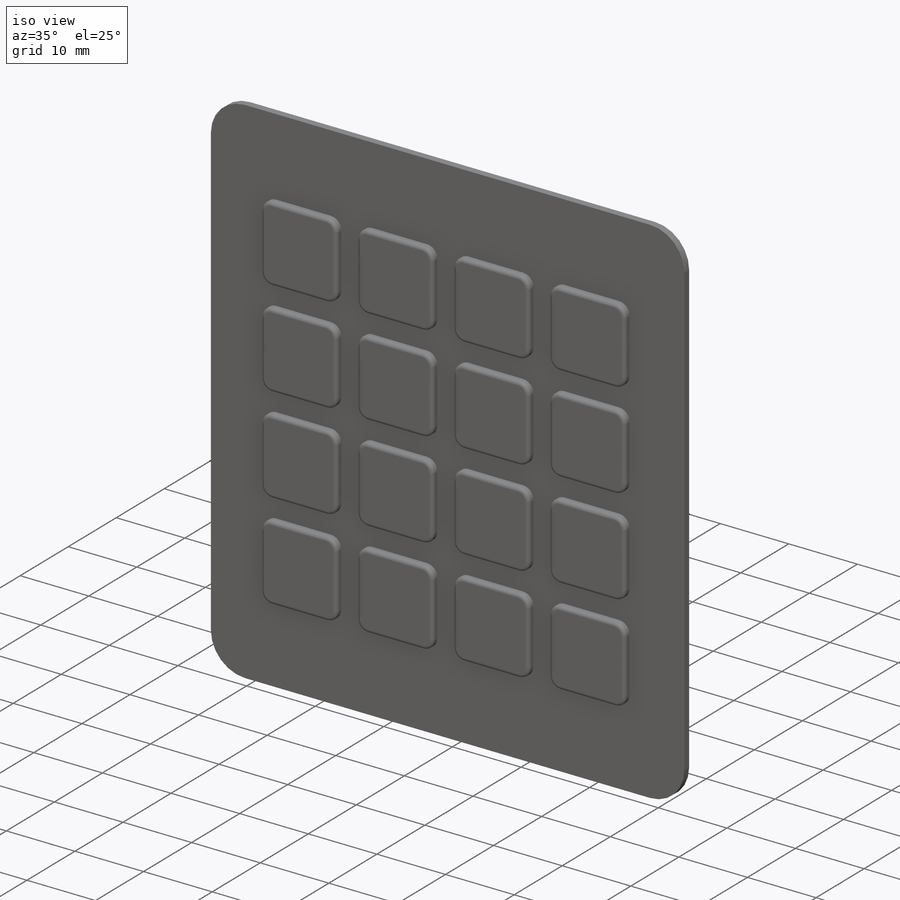
[diagram: iso view]
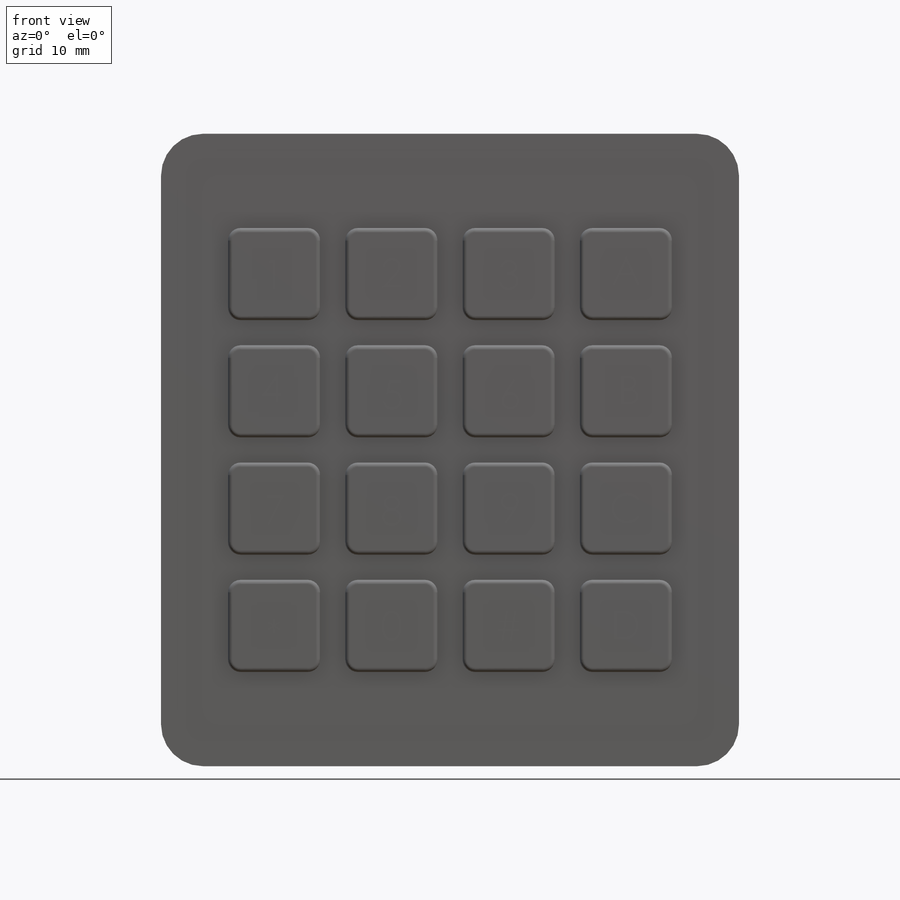
[diagram: front view]
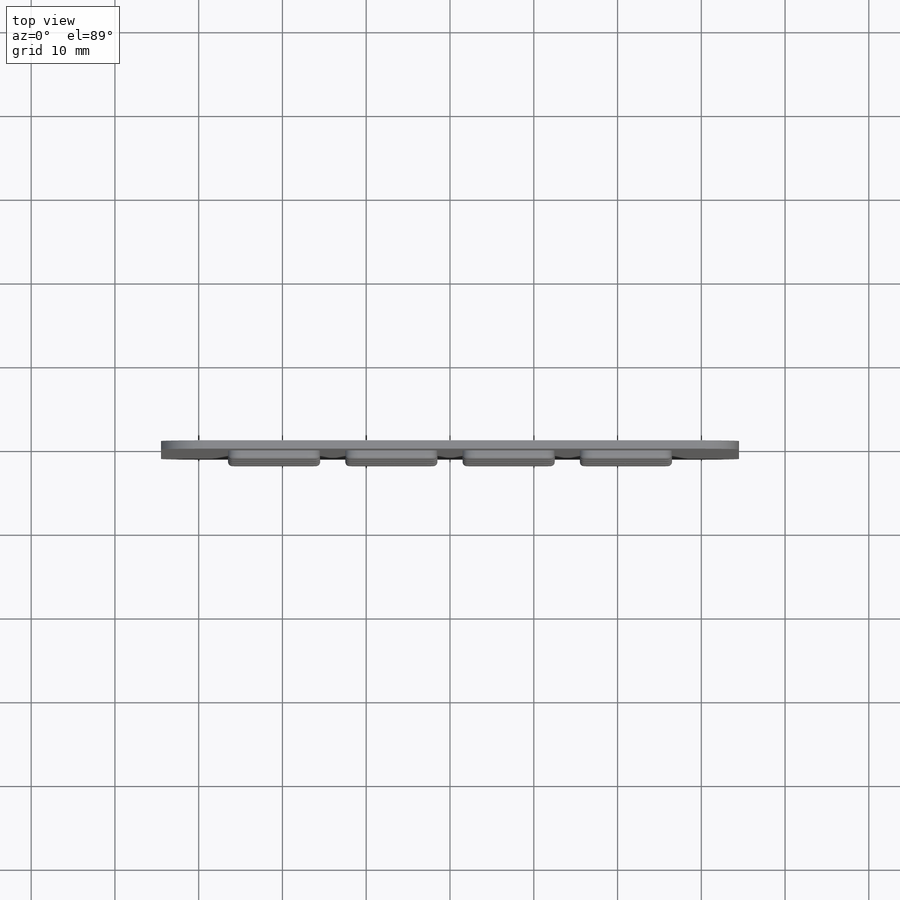
[diagram: top view]
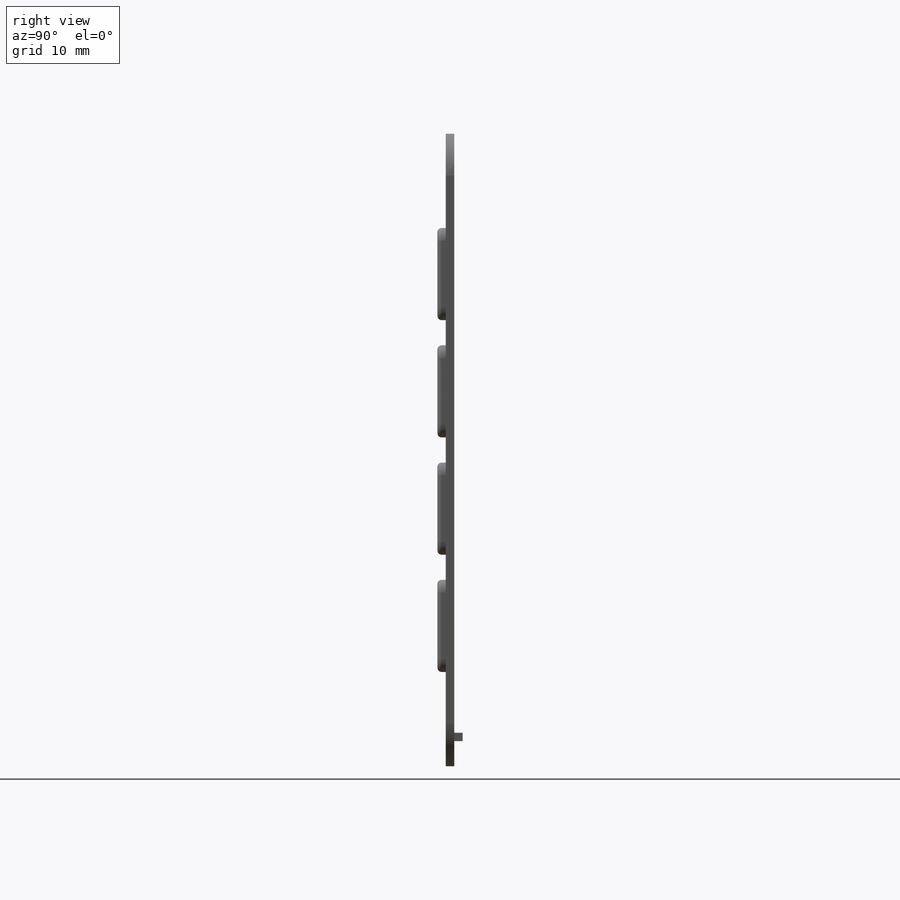
[diagram: right view]
SOLIDWORKS PART (.sldprt)
format: sldprt  version: not decoded by parser v0  size: 1,724,416 bytes
history: native  units: mm
features: sketch x5, extrude x5, plane x3, material x1, fillet x1 (+9 scaffold rows collapsed)
feature tree (24):
  scaffold x9  (default folders/planes/origin — collapsed)
  material  "Material <sin especificar>"
  plane  "Alzado"
  plane  "Planta"
  plane  "Vista lateral"
  sketch  "Croquis1"  dims[D3=5.0mm D4=5.0mm D5=5.0mm D1=75.5mm D2=69.0mm]
  extrude  "Saliente-Extruir1"  Depth=1mm
  sketch  "Croquis2"  dims[c1.D2=1.5mm c1.D3=1.5mm c1.D1=11.0mm c2.D3=21.0mm c2.D4=20.0mm c2.D1=11.0mm c2.D2=11.0mm c3.D4=21.0mm c3.D5=21.0mm c3.D6=1.5mm c3.D7=1.5mm]
  extrude  "Saliente-Extruir2"  Depth=1mm
  fillet  "Redondeo2"  Radius=0.5mm
  sketch  "Croquis3"  dims[D1=2.0mm D2=1.0mm]
  extrude  "Saliente-Extruir3"  Depth=0.0001mm
  sketch  "Croquis4"
  extrude  "Saliente-Extruir4"  Depth=0.0001mm
  sketch  "Croquis5"  dims[D1=21.5mm D2=1.0mm D3=23.5mm D4=3.5mm]
  extrude  "Saliente-Extruir5"  Depth=1mm
decode coverage: 10 of 11 modeling features carry decoded parameters
note: suppression state not decoded; provenance and decode notes live in map.json
